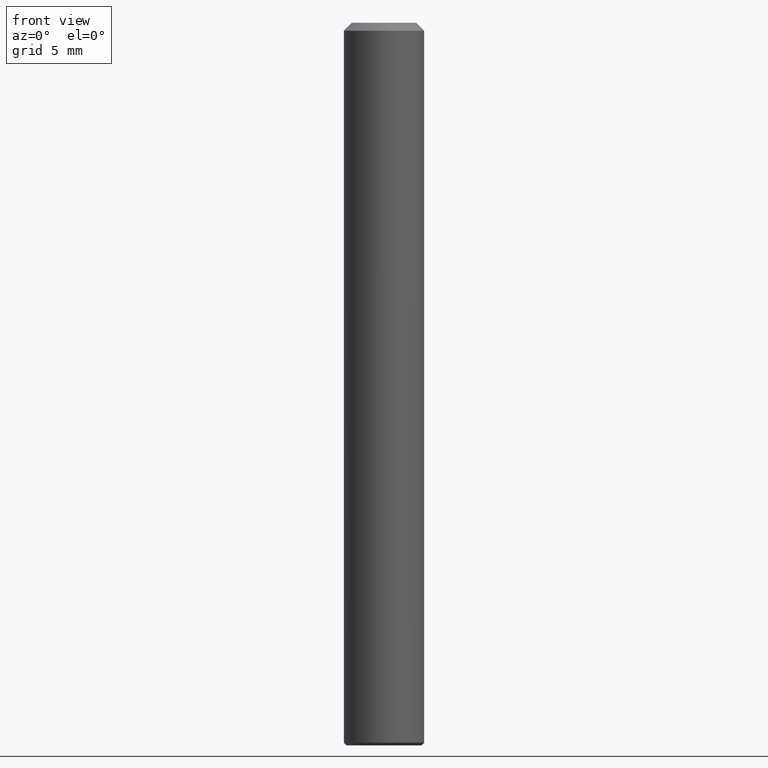
[diagram: clean part render]
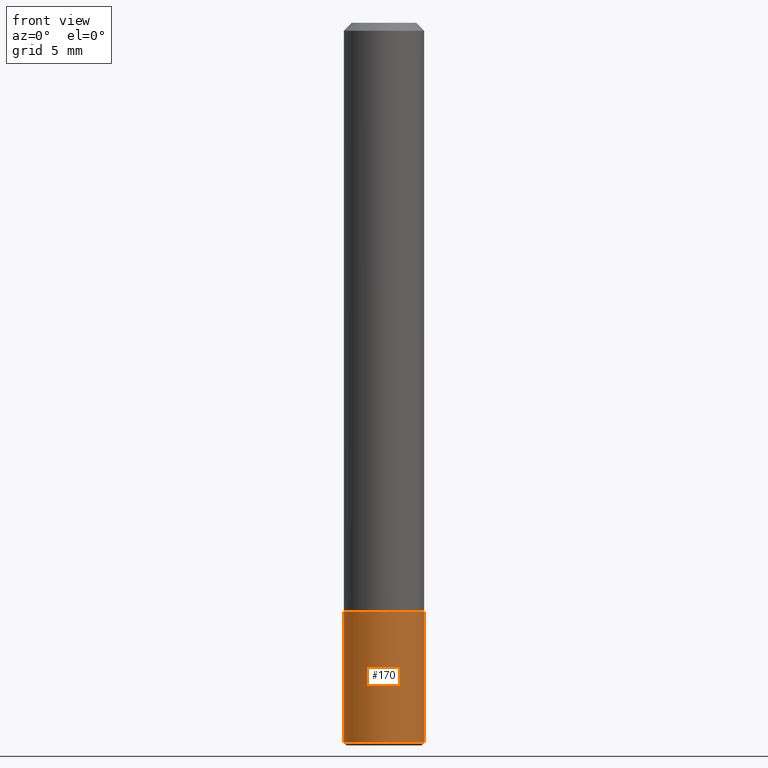
[diagram: same view with one face highlighted and labeled with its STEP entity id]
A machine part, front view. The second image highlights one B-rep face of the part: STEP entity #170.
In plain terms, the highlighted cylindrical surface (bore or boss wall) has radius 3 mm, axis along (0, 0, 1).
Its self-contained STEP definition (entity closure, byte-faithful):
#28 = AXIS2_PLACEMENT_3D ( 'NONE', #104, #205, #155 ) ;
#43 = CARTESIAN_POINT ( 'NONE',  ( -3.888448837163500454E-13, 0.0000000000000000000, -53.80000000000000426 ) ) ;
#52 = EDGE_LOOP ( 'NONE', ( #145 ) ) ;
#62 = CYLINDRICAL_SURFACE ( 'NONE', #28, 3.000000000000006217 ) ;
#63 = EDGE_CURVE ( 'NONE', #189, #189, #74, .T. ) ;
#70 = DIRECTION ( 'NONE',  ( -8.331011617774372690E-15, 0.0000000000000000000, -1.000000000000000000 ) ) ;
#74 = CIRCLE ( 'NONE', #168, 3.000000000000012879 ) ;
#80 = CARTESIAN_POINT ( 'NONE',  ( 2.999999999999698908, 0.0000000000000000000, -44.00000000000002132 ) ) ;
#104 = CARTESIAN_POINT ( 'NONE',  ( -3.770799845950584024E-13, 0.0000000000000000000, -54.00000000000000000 ) ) ;
#105 = EDGE_CURVE ( 'NONE', #139, #139, #121, .T. ) ;
#111 = EDGE_LOOP ( 'NONE', ( #182 ) ) ;
#114 = CARTESIAN_POINT ( 'NONE',  ( -3.072503578181957353E-13, 0.0000000000000000000, -44.00000000000000000 ) ) ;
#115 = DIRECTION ( 'NONE',  ( -6.982962677686267499E-15, -0.0000000000000000000, -1.000000000000000000 ) ) ;
#121 = CIRCLE ( 'NONE', #169, 3.000000000000006217 ) ;
#137 = FACE_OUTER_BOUND ( 'NONE', #111, .T. ) ;
#139 = VERTEX_POINT ( 'NONE', #80 ) ;
#145 = ORIENTED_EDGE ( 'NONE', *, *, #63, .F. ) ;
#155 = DIRECTION ( 'NONE',  ( 1.000000000000000000, 0.0000000000000000000, -6.938893903907214178E-15 ) ) ;
#157 = FACE_OUTER_BOUND ( 'NONE', #52, .T. ) ;
#168 = AXIS2_PLACEMENT_3D ( 'NONE', #43, #70, #216 ) ;
#169 = AXIS2_PLACEMENT_3D ( 'NONE', #114, #115, #179 ) ;
#170 = ADVANCED_FACE ( 'NONE', ( #157, #137 ), #62, .T. ) ;
#179 = DIRECTION ( 'NONE',  ( 1.000000000000000000, 0.0000000000000000000, -6.938893903907214178E-15 ) ) ;
#182 = ORIENTED_EDGE ( 'NONE', *, *, #105, .T. ) ;
#189 = VERTEX_POINT ( 'NONE', #207 ) ;
#205 = DIRECTION ( 'NONE',  ( 6.982962677686266711E-15, 0.0000000000000000000, 1.000000000000000000 ) ) ;
#207 = CARTESIAN_POINT ( 'NONE',  ( -3.000000000000401901, 0.0000000000000000000, -53.79999999999998295 ) ) ;
#216 = DIRECTION ( 'NONE',  ( -1.000000000000000000, 0.0000000000000000000, 9.251858538542931201E-15 ) ) ;